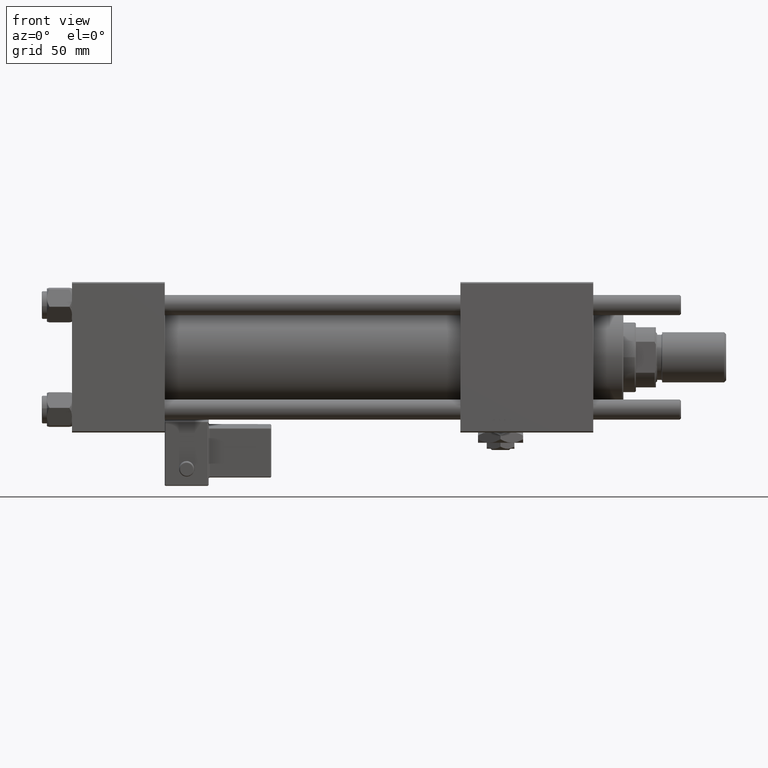
[diagram: clean part render]
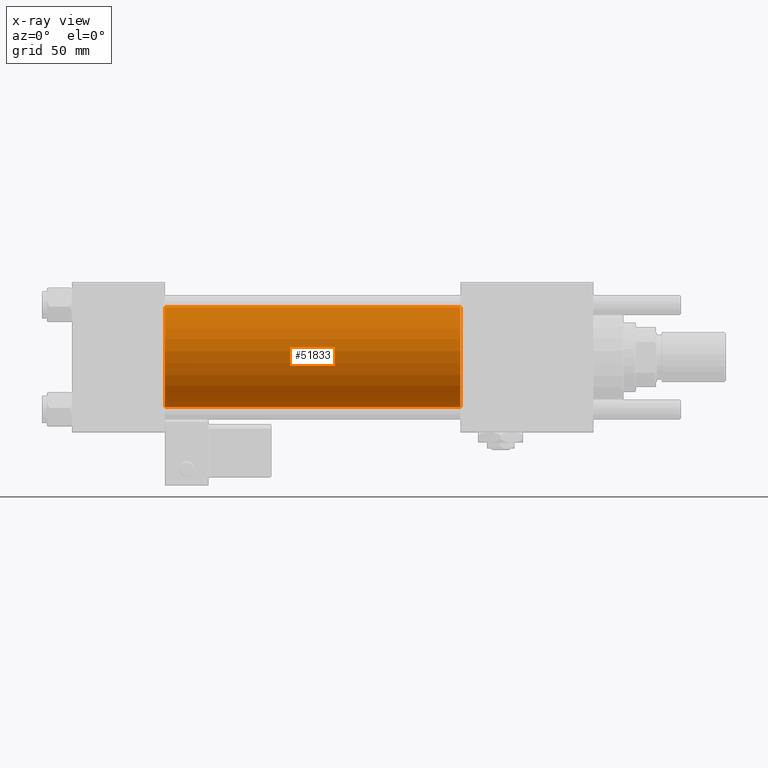
[diagram: x-ray — body ghosted, one internal face saturated and labeled with its STEP entity id]
A machine part, front view, then the same camera in x-ray: the body is ghosted and one INTERNAL B-rep face — a face not visible from any outside direction — is saturated and labeled: STEP entity #51833.
In plain terms, the highlighted cylindrical surface (partial cylindrical patch) has radius 20 mm, axis along (-1, -0, -0).
Its self-contained STEP definition (entity closure, byte-faithful):
#583 = CYLINDRICAL_SURFACE ( 'NONE', #4838, 20.00000000000000000 ) ;
#1816 = CARTESIAN_POINT ( 'NONE',  ( 155.0000000000000000, -1.527916156705042519E-16, -20.00000000000000000 ) ) ;
#1948 = CARTESIAN_POINT ( 'NONE',  ( 155.0000000000000000, -2.602085213965210642E-15, 20.00000000000000000 ) ) ;
#4551 = DIRECTION ( 'NONE',  ( -1.000000000000000000, -0.000000000000000000, -0.000000000000000000 ) ) ;
#4838 = AXIS2_PLACEMENT_3D ( 'NONE', #43944, #33430, #5231 ) ;
#5167 = CARTESIAN_POINT ( 'NONE',  ( 155.0000000000000000, -1.527916156705042519E-16, -20.00000000000000000 ) ) ;
#5231 = DIRECTION ( 'NONE',  ( 0.000000000000000000, 0.000000000000000000, 1.000000000000000000 ) ) ;
#6333 = CARTESIAN_POINT ( 'NONE',  ( 155.0000000000000000, -2.602085213965210642E-15, 20.00000000000000000 ) ) ;
#7064 = AXIS2_PLACEMENT_3D ( 'NONE', #39218, #49171, #54442 ) ;
#9879 = ORIENTED_EDGE ( 'NONE', *, *, #21598, .T. ) ;
#11504 = EDGE_CURVE ( 'NONE', #49647, #57130, #53740, .T. ) ;
#13911 = ORIENTED_EDGE ( 'NONE', *, *, #11504, .F. ) ;
#14930 = ORIENTED_EDGE ( 'NONE', *, *, #58150, .T. ) ;
#15159 = FACE_OUTER_BOUND ( 'NONE', #58449, .T. ) ;
#17837 = VECTOR ( 'NONE', #4551, 1000.000000000000000 ) ;
#19891 = AXIS2_PLACEMENT_3D ( 'NONE', #52504, #34169, #58382 ) ;
#21598 = EDGE_CURVE ( 'NONE', #39401, #27452, #47656, .T. ) ;
#22528 = CARTESIAN_POINT ( 'NONE',  ( 37.00000000000000000, -2.602085213965210642E-15, 20.00000000000000000 ) ) ;
#25518 = DIRECTION ( 'NONE',  ( -1.000000000000000000, -0.000000000000000000, -0.000000000000000000 ) ) ;
#27452 = VERTEX_POINT ( 'NONE', #36486 ) ;
#27665 = ORIENTED_EDGE ( 'NONE', *, *, #57461, .F. ) ;
#33318 = VECTOR ( 'NONE', #25518, 1000.000000000000000 ) ;
#33430 = DIRECTION ( 'NONE',  ( -1.000000000000000000, -0.000000000000000000, -0.000000000000000000 ) ) ;
#34169 = DIRECTION ( 'NONE',  ( 1.000000000000000000, 0.000000000000000000, 0.000000000000000000 ) ) ;
#35770 = CIRCLE ( 'NONE', #7064, 20.00000000000000000 ) ;
#36486 = CARTESIAN_POINT ( 'NONE',  ( 37.00000000000000000, -1.527916156705042519E-16, -20.00000000000000000 ) ) ;
#38678 = CIRCLE ( 'NONE', #19891, 20.00000000000000000 ) ;
#39218 = CARTESIAN_POINT ( 'NONE',  ( 155.0000000000000000, -2.602085213965210642E-15, 0.000000000000000000 ) ) ;
#39401 = VERTEX_POINT ( 'NONE', #1816 ) ;
#43944 = CARTESIAN_POINT ( 'NONE',  ( 155.0000000000000000, -2.602085213965210642E-15, 0.000000000000000000 ) ) ;
#47656 = LINE ( 'NONE', #5167, #17837 ) ;
#49171 = DIRECTION ( 'NONE',  ( 1.000000000000000000, 0.000000000000000000, 0.000000000000000000 ) ) ;
#49647 = VERTEX_POINT ( 'NONE', #6333 ) ;
#51833 = ADVANCED_FACE ( 'NONE', ( #15159 ), #583, .F. ) ;
#52504 = CARTESIAN_POINT ( 'NONE',  ( 37.00000000000000000, -2.602085213965210642E-15, 0.000000000000000000 ) ) ;
#53740 = LINE ( 'NONE', #1948, #33318 ) ;
#54442 = DIRECTION ( 'NONE',  ( 0.000000000000000000, 0.000000000000000000, -1.000000000000000000 ) ) ;
#57130 = VERTEX_POINT ( 'NONE', #22528 ) ;
#57461 = EDGE_CURVE ( 'NONE', #57130, #27452, #38678, .T. ) ;
#58150 = EDGE_CURVE ( 'NONE', #49647, #39401, #35770, .T. ) ;
#58382 = DIRECTION ( 'NONE',  ( 0.000000000000000000, 0.000000000000000000, -1.000000000000000000 ) ) ;
#58449 = EDGE_LOOP ( 'NONE', ( #14930, #9879, #27665, #13911 ) ) ;